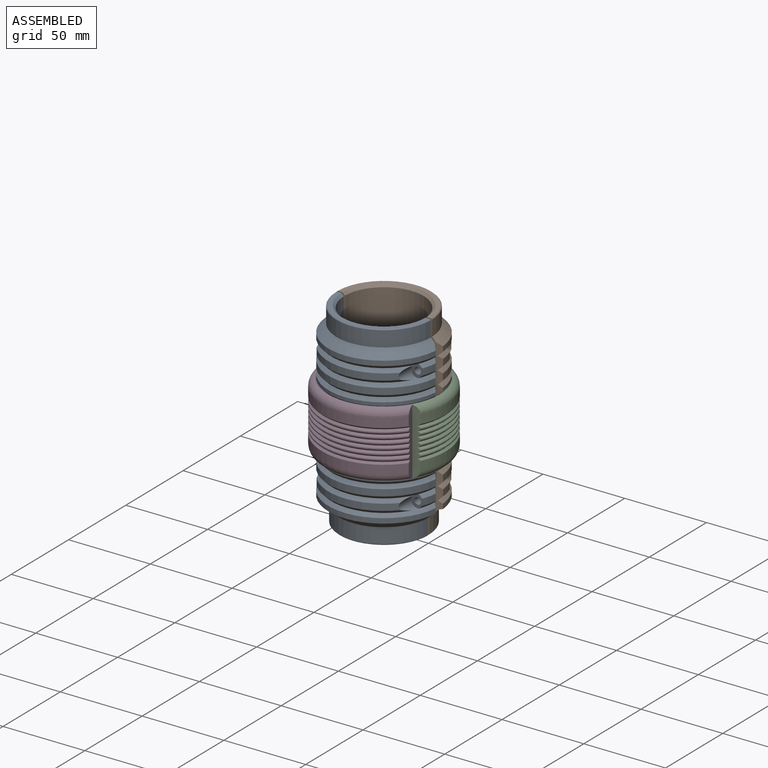
[diagram: assembled view]
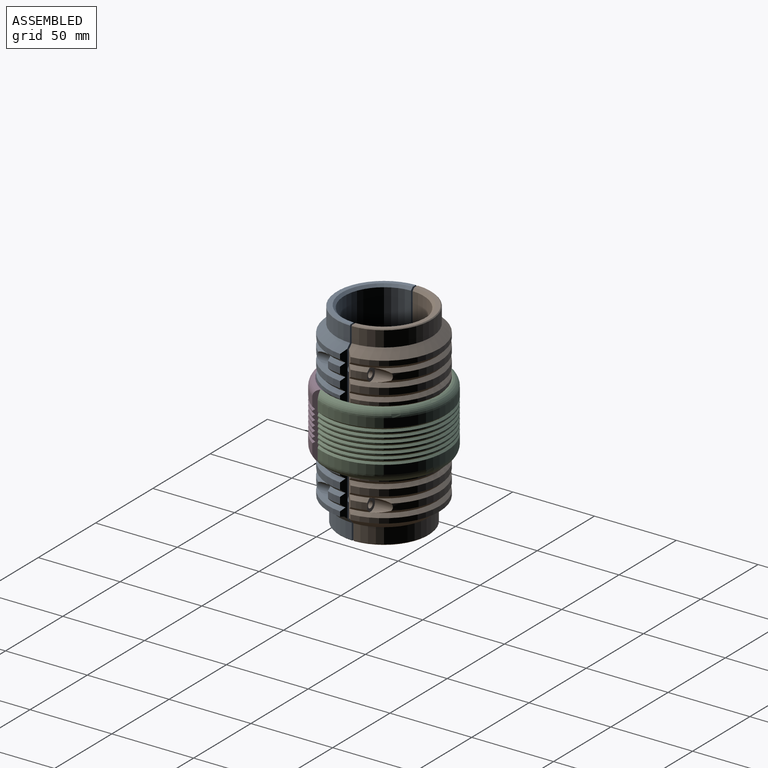
[diagram: assembled view, second angle]
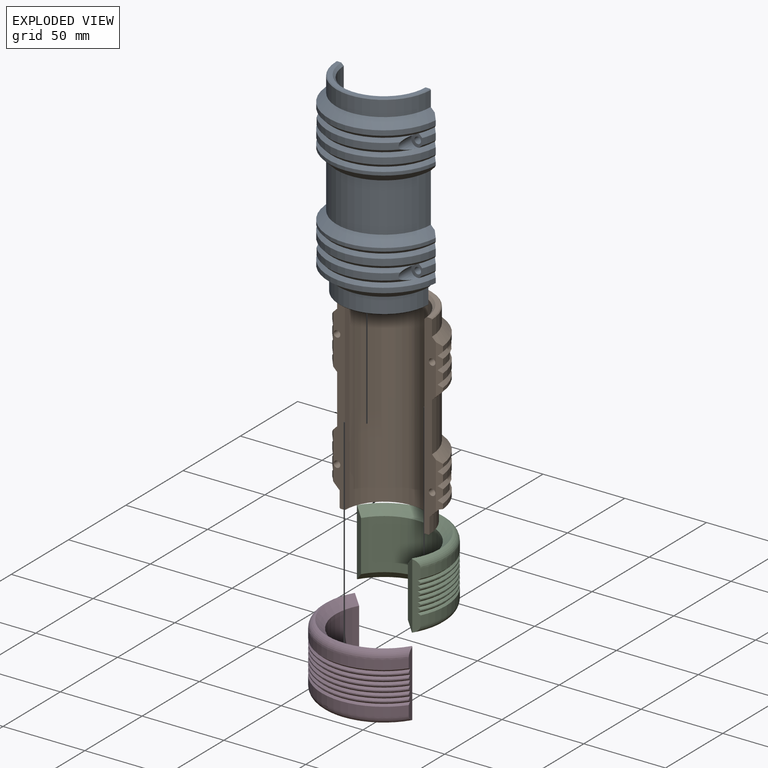
[diagram: exploded view]
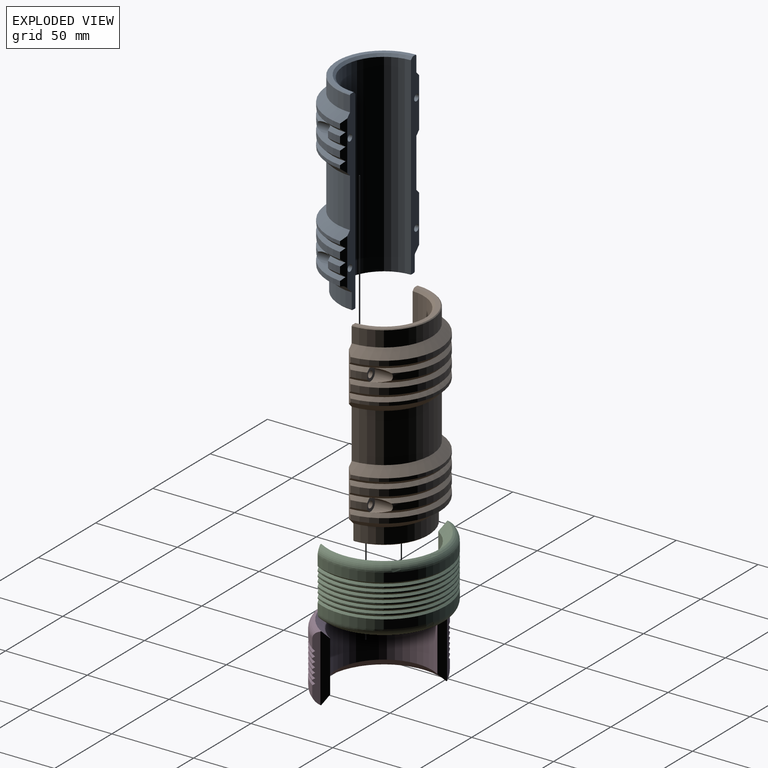
[diagram: exploded view, second angle]
ASSEMBLY  parts=4 mates=3
PART A: 64 faces, bbox 68.1x33.7x120.1 mm
  f0: cone r=32mm half-angle=45deg, axis (0,0,1), area 175.5mm2, adj f4,f42,f54,f60
  f1: cone r=35mm half-angle=45deg, axis (0,0,-1), area 175.5mm2, adj f4,f43,f54,f60
  f2: cone r=32mm half-angle=45deg, axis (0,0,1), area 175.5mm2, adj f7,f48,f52,f58
  f3: cone r=35mm half-angle=45deg, axis (0,0,-1), area 175.5mm2, adj f7,f49,f52,f58
  f4: cylinder r=34mm len=51.17mm, axis (0,0,-1), area 227.3mm2, adj f0,f1,f54,f60
  f5: cylinder r=34mm len=8.81mm, axis (0,0,-1), area 36.3mm2, adj f8,f10,f40,f61
  f6: cylinder r=34mm len=8.81mm, axis (0,0,-1), area 36.3mm2, adj f12,f14,f41,f59
  f7: cylinder r=34mm len=51.17mm, axis (0,0,-1), area 227.3mm2, adj f2,f3,f52,f58
  f8: cone r=32mm half-angle=45deg, axis (0,0,1), area 28.7mm2, adj f5,f40,f42,f60,f61
  f9: cone r=32mm half-angle=45deg, axis (0,0,1), area 28.7mm2, adj f20,f39,f42,f54,f55
  f10: cone r=35mm half-angle=45deg, axis (0,0,-1), area 28.7mm2, adj f5,f40,f43,f60,f61
  f11: cone r=35mm half-angle=45deg, axis (0,0,-1), area 28.7mm2, adj f20,f39,f43,f54,f55
  f12: cone r=32mm half-angle=45deg, axis (0,0,1), area 28.7mm2, adj f6,f41,f48,f58,f59
  f13: cone r=32mm half-angle=45deg, axis (0,0,1), area 28.7mm2, adj f16,f38,f48,f52,f53
  f14: cone r=35mm half-angle=45deg, axis (0,0,-1), area 28.7mm2, adj f6,f41,f49,f58,f59
  f15: cone r=35mm half-angle=45deg, axis (0,0,-1), area 28.7mm2, adj f16,f38,f49,f52,f53
  f16: cylinder r=34mm len=8.81mm, axis (0,0,-1), area 36.3mm2, adj f13,f15,f38,f53
  f17: cylinder r=34mm len=67.7mm, axis (0,0,-1), area 401.7mm2, adj f38,f41,f47,f48
  f18: cylinder r=34mm len=67.7mm, axis (0,0,-1), area 200.8mm2, adj f37,f38,f41,f46
  f19: cylinder r=34mm len=67.7mm, axis (0,0,-1), area 401.7mm2, adj f39,f40,f43,f44
  f20: cylinder r=34mm len=8.81mm, axis (0,0,-1), area 36.3mm2, adj f9,f11,f39,f55
  f21: cylinder r=34mm len=67.7mm, axis (0,0,-1), area 301.2mm2, adj f29,f39,f40,f42
  f22: plane 120x7.16mm, normal (0,-1,0), area 680.4mm2, adj f24,f25,f26,f27,f30,f31,f32,f34
  f23: cylinder r=34mm len=67.7mm, axis (0,0,-1), area 301.2mm2, adj f36,f38,f41,f49
  f24: cone r=24.25mm half-angle=45deg, axis (0,0,1), area 164.5mm2, adj f22,f25,f30,f33
  f25: cylinder r=24.25mm len=118.5mm, axis (0,0,1), area 8909.3mm2, adj f22,f24,f26,f33
  f26: plane 53.99x26.5mm, normal (0,0,-1), area 218.6mm2, adj f22,f25,f33,f62
  f27: cylinder r=27.5mm len=54.99mm, axis (0,0,-1), area 811.2mm2, adj f22,f33,f34,f62
  f28: cylinder r=34mm len=67.7mm, axis (0,0,-1), area 200.8mm2, adj f35,f39,f40,f45
  f29: plane 67.7x32.34mm, normal (0,0,-1), area 149.4mm2, adj f21,f34,f39,f40
  f30: plane 56.99x28mm, normal (0,0,1), area 231.6mm2, adj f22,f24,f33,f63
  f31: cylinder r=29mm len=57.99mm, axis (0,0,-1), area 856mm2, adj f22,f33,f36,f63
  f32: cylinder r=29mm len=57.99mm, axis (0,0,-1), area 2703.2mm2, adj f22,f33,f35,f37
  f33: plane 120x7.16mm, normal (0,-1,0), area 680.4mm2, adj f24,f25,f26,f27,f30,f31,f32,f34
  f34: cone r=27.5mm half-angle=45deg, axis (0,0,1), area 657.6mm2, adj f22,f27,f29,f33,f39,f40
  f35: cone r=34mm half-angle=45deg, axis (0,0,-1), area 683mm2, adj f22,f28,f32,f33,f39,f40
  f36: cone r=34mm half-angle=45deg, axis (0,0,-1), area 683mm2, adj f22,f23,f31,f33,f38,f41
  f37: cone r=29mm half-angle=45deg, axis (0,0,1), area 683mm2, adj f18,f22,f32,f33,f38,f41
  f38: plane 30.33x2.82mm, normal (-0.74,-0.67,0), area 84.2mm2, adj f13,f15,f16,f17,f18,f23,f33,f36
  f39: plane 28.83x2.82mm, normal (-0.74,-0.67,0), area 80.3mm2, adj f9,f11,f19,f20,f21,f28,f29,f33
  f40: plane 28.83x2.82mm, normal (0.74,-0.67,0), area 80.3mm2, adj f5,f8,f10,f19,f21,f22,f28,f29
  f41: plane 30.33x2.82mm, normal (0.74,-0.67,0), area 84.2mm2, adj f6,f12,f14,f17,f18,f22,f23,f36
  f42: cone r=35mm half-angle=45deg, axis (0,0,-1), area 281.1mm2, adj f0,f8,f9,f21,f39,f40
  f43: cone r=32mm half-angle=45deg, axis (0,0,1), area 281.1mm2, adj f1,f10,f11,f19,f39,f40
  f44: cone r=35mm half-angle=45deg, axis (0,0,-1), area 281.1mm2, adj f19,f39,f40,f45
  f45: cone r=32mm half-angle=45deg, axis (0,0,1), area 281.1mm2, adj f28,f39,f40,f44
  f46: cone r=35mm half-angle=45deg, axis (0,0,-1), area 281.1mm2, adj f18,f38,f41,f47
  f47: cone r=32mm half-angle=45deg, axis (0,0,1), area 281.1mm2, adj f17,f38,f41,f46
  f48: cone r=35mm half-angle=45deg, axis (0,0,-1), area 281.1mm2, adj f2,f12,f13,f17,f38,f41
  f49: cone r=32mm half-angle=45deg, axis (0,0,1), area 281.1mm2, adj f3,f14,f15,f23,f38,f41
  f50: cylinder r=2mm len=11.5mm, axis (0,-1,0), area 144.5mm2, adj f33,f55
  f51: cylinder r=2mm len=11.5mm, axis (0,-1,0), area 144.5mm2, adj f33,f53
  f52: cylinder r=4mm len=10.99mm, axis (0,1,0), area 95.7mm2, adj f2,f3,f7,f13,f15,f53
  f53: plane 8.02x6.79mm, normal (0,1,0), area 30.4mm2, adj f13,f15,f16,f51,f52
  f54: cylinder r=4mm len=10.99mm, axis (0,1,0), area 95.7mm2, adj f0,f1,f4,f9,f11,f55
  f55: plane 8.02x6.79mm, normal (0,1,0), area 30.4mm2, adj f9,f11,f20,f50,f54
  f56: cylinder r=2mm len=11.5mm, axis (0,-1,0), area 144.5mm2, adj f22,f61
  f57: cylinder r=2mm len=11.5mm, axis (0,-1,0), area 144.5mm2, adj f22,f59
  f58: cylinder r=4mm len=10.99mm, axis (0,1,0), area 95.7mm2, adj f2,f3,f7,f12,f14,f59
  f59: plane 8.02x6.79mm, normal (0,1,0), area 30.4mm2, adj f6,f12,f14,f57,f58
  f60: cylinder r=4mm len=10.99mm, axis (0,1,0), area 95.7mm2, adj f0,f1,f4,f8,f10,f61
  f61: plane 8.02x6.79mm, normal (0,1,0), area 30.4mm2, adj f5,f8,f10,f56,f60
  f62: cone r=27mm half-angle=45deg, axis (0,0,1), area 59.8mm2, adj f22,f26,f27,f33
  f63: cone r=29mm half-angle=45deg, axis (0,0,-1), area 63.2mm2, adj f22,f30,f31,f33
PART B: same geometry as A
PART C: 33 faces, bbox 82.3x41.2x41.3 mm
  f0: cylinder r=38mm len=75.66mm, axis (0,0,-1), area 80.8mm2, adj f13,f14,f28,f29
  f1: cylinder r=38mm len=75.66mm, axis (0,0,-1), area 80.8mm2, adj f13,f14,f26,f27
  f2: cylinder r=38mm len=75.66mm, axis (0,0,-1), area 80.8mm2, adj f13,f14,f18,f25
  f3: cylinder r=38mm len=75.66mm, axis (0,0,-1), area 80.8mm2, adj f13,f14,f22,f23
  f4: cylinder r=38mm len=75.66mm, axis (0,0,-1), area 80.8mm2, adj f13,f14,f20,f21
  f5: cylinder r=38mm len=75.66mm, axis (0,0,-1), area 619.2mm2, adj f13,f14,f19,f32
  f6: cylinder r=38mm len=75.66mm, axis (0,0,-1), area 80.8mm2, adj f13,f14,f17,f24
  f7: cone r=38mm half-angle=45deg, axis (0,0,-1), area 701.5mm2, adj f10,f11,f12,f16
  f8: cylinder r=38mm len=75.66mm, axis (0,0,-1), area 619.2mm2, adj f13,f14,f30,f31
  f9: cone r=29.5mm half-angle=45deg, axis (0,0,1), area 701.5mm2, adj f10,f11,f12,f15
  f10: cylinder r=29.5mm len=59mm, axis (0,0,-1), area 2857mm2, adj f7,f9,f11,f12
  f11: plane 40.93x5.37mm, normal (-0.02,-1,0), area 195.1mm2, adj f7,f9,f10,f13,f15,f16
  f12: plane 40.93x5.37mm, normal (0,-1,0), area 195.1mm2, adj f7,f9,f10,f14,f15,f16
  f13: plane 40.61x3.33mm, normal (-0.75,-0.66,0), area 155.9mm2, adj f0,f1,f2,f3,f4,f5,f6,f8
  f14: plane 40.61x3.28mm, normal (0.74,-0.68,0), area 155.9mm2, adj f0,f1,f2,f3,f4,f5,f6,f8
  f15: cone r=38mm half-angle=67.5deg, axis (0,0,-1), area 52.7mm2, adj f9,f11,f12,f13,f14,f31
  f16: cone r=34.46mm half-angle=67.5deg, axis (0,0,1), area 52.7mm2, adj f7,f11,f12,f13,f14,f32
  f17: cone r=39.86mm half-angle=45deg, axis (0,0,-1), area 179.9mm2, adj f6,f13,f14,f18
  f18: cone r=36.86mm half-angle=45deg, axis (0,0,1), area 179.9mm2, adj f2,f13,f14,f17
  f19: cone r=39.86mm half-angle=45deg, axis (0,0,-1), area 179.9mm2, adj f5,f13,f14,f20
  f20: cone r=36.86mm half-angle=45deg, axis (0,0,1), area 179.9mm2, adj f4,f13,f14,f19
  f21: cone r=39.86mm half-angle=45deg, axis (0,0,-1), area 179.9mm2, adj f4,f13,f14,f22
  f22: cone r=36.86mm half-angle=45deg, axis (0,0,1), area 179.9mm2, adj f3,f13,f14,f21
  f23: cone r=39.86mm half-angle=45deg, axis (0,0,-1), area 179.9mm2, adj f3,f13,f14,f24
  f24: cone r=36.86mm half-angle=45deg, axis (0,0,1), area 179.9mm2, adj f6,f13,f14,f23
  f25: cone r=39.86mm half-angle=45deg, axis (0,0,-1), area 179.9mm2, adj f2,f13,f14,f26
  f26: cone r=36.86mm half-angle=45deg, axis (0,0,1), area 179.9mm2, adj f1,f13,f14,f25
  f27: cone r=39.86mm half-angle=45deg, axis (0,0,-1), area 179.9mm2, adj f1,f13,f14,f28
  f28: cone r=36.86mm half-angle=45deg, axis (0,0,1), area 179.9mm2, adj f0,f13,f14,f27
  f29: cone r=39.86mm half-angle=45deg, axis (0,0,-1), area 179.9mm2, adj f0,f13,f14,f30
  f30: cone r=36.86mm half-angle=45deg, axis (0,0,1), area 179.9mm2, adj f8,f13,f14,f29
  f31: torus R=33mm, axis (0,0,1), area 654.1mm2, adj f8,f13,f14,f15
  f32: torus R=33mm, axis (0,0,-1), area 654.1mm2, adj f5,f13,f14,f16
PART D: same geometry as C
PLACE A rot(axis=(0,0,1),180deg) t=(-13.16,-12.81,-7.67)mm
PLACE B t=(-13.16,-12.81,-7.67)mm fixed
PLACE C rot(axis=(0,0,-1),31deg) t=(-13.16,-12.81,-8.17)mm
PLACE D rot(axis=(0.96,-0.27,0),180deg) t=(-13.16,-12.81,111.83)mm
MATE revolute C.f0 <-> B.f0  axis (0,0,-1) through (-13.16,-12.81,67.33)mm
MATE fastened A.f0 <-> B.f0  axis (0,0,1) through (-13.16,-12.81,110.83)mm
MATE fastened C.f0 <-> D.f0  axis (0,0,-1) through (-13.16,-12.81,67.33)mm
